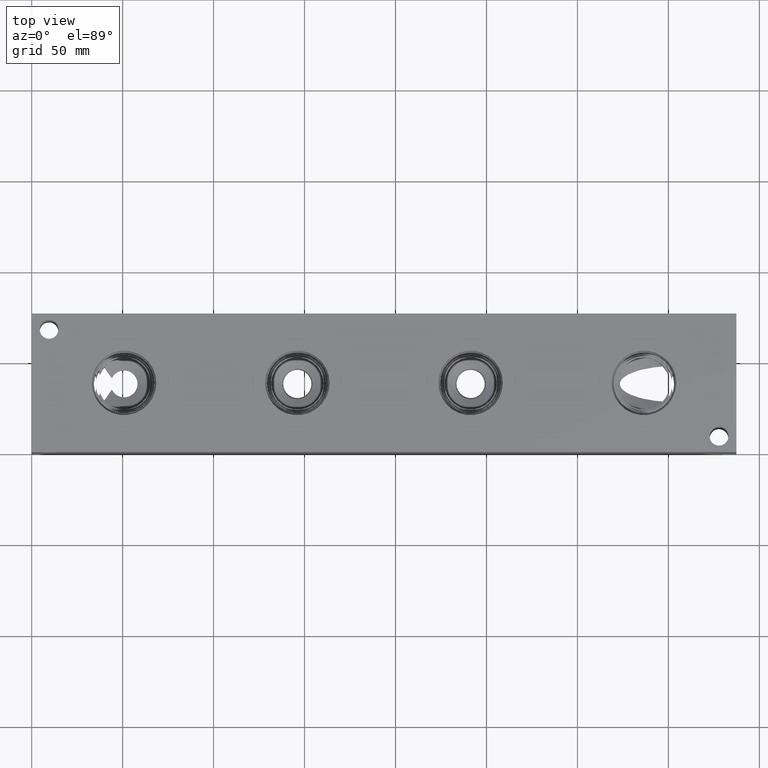
[diagram: clean part render]
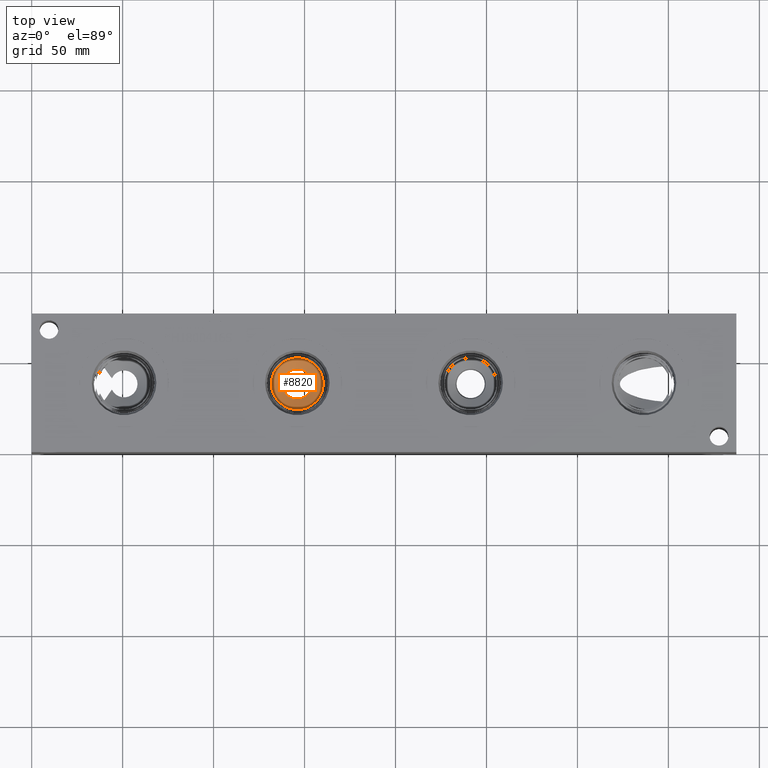
[diagram: same view with one face highlighted and labeled with its STEP entity id]
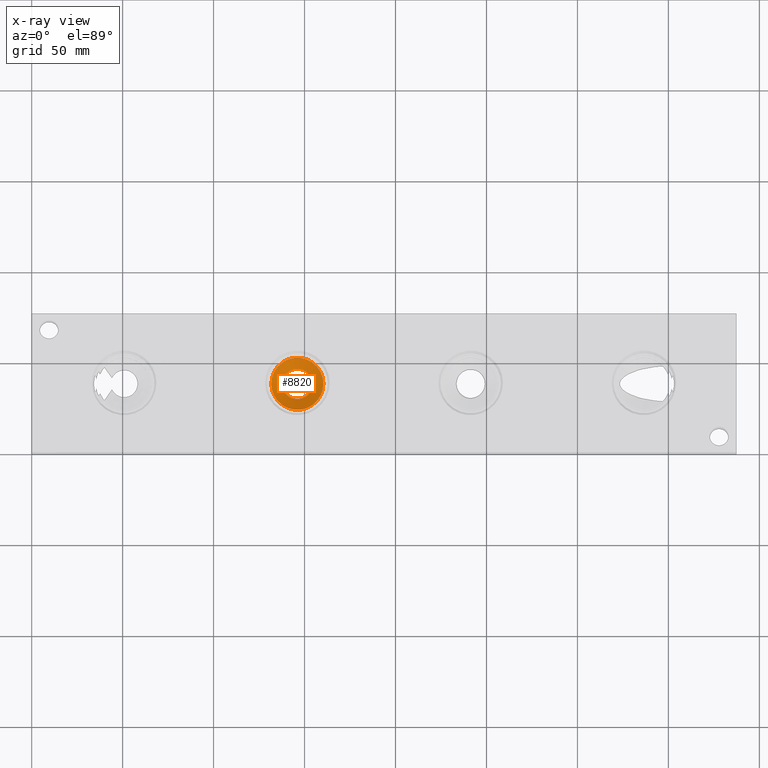
[diagram: x-ray of the same camera — body ghosted, the highlighted face saturated]
A machine part, top view. The second image highlights one B-rep face of the part: STEP entity #8820.
The next image is the same camera in x-ray: the body ghosted, the highlighted face saturated — about 0% of this face is hidden behind the body in this view.
In plain terms, the highlighted conical surface has half-angle 60 deg.
Its self-contained STEP definition (entity closure, byte-faithful):
#126=CONICAL_SURFACE('',#9330,7.14375,1.0471975511966);
#269=CIRCLE('',#9331,14.2875);
#270=CIRCLE('',#9332,8.29239320143379);
#271=CIRCLE('',#9333,14.2875);
#1128=FACE_OUTER_BOUND('',#1628,.T.);
#1628=EDGE_LOOP('',(#7486,#7487,#7488,#7489,#7490));
#2457=LINE('',#15194,#3248);
#3248=VECTOR('',#11079,7.14375);
#4043=VERTEX_POINT('',#15190);
#4044=VERTEX_POINT('',#15191);
#4045=VERTEX_POINT('',#15193);
#5225=EDGE_CURVE('',#4043,#4044,#269,.T.);
#5226=EDGE_CURVE('',#4044,#4045,#2457,.T.);
#5227=EDGE_CURVE('',#4045,#4045,#270,.T.);
#5228=EDGE_CURVE('',#4044,#4043,#271,.T.);
#7486=ORIENTED_EDGE('',*,*,#5225,.T.);
#7487=ORIENTED_EDGE('',*,*,#5226,.T.);
#7488=ORIENTED_EDGE('',*,*,#5227,.F.);
#7489=ORIENTED_EDGE('',*,*,#5226,.F.);
#7490=ORIENTED_EDGE('',*,*,#5228,.T.);
#8820=ADVANCED_FACE('',(#1128),#126,.F.);
#9330=AXIS2_PLACEMENT_3D('',#15189,#11075,#11076);
#9331=AXIS2_PLACEMENT_3D('',#15192,#11077,#11078);
#9332=AXIS2_PLACEMENT_3D('',#15195,#11080,#11081);
#9333=AXIS2_PLACEMENT_3D('',#15196,#11082,#11083);
#11075=DIRECTION('center_axis',(0.,0.,1.));
#11076=DIRECTION('ref_axis',(1.,0.,0.));
#11077=DIRECTION('center_axis',(0.,0.,1.));
#11078=DIRECTION('ref_axis',(1.,0.,0.));
#11079=DIRECTION('',(0.866025403784438,1.06057523872491E-16,-0.5));
#11080=DIRECTION('center_axis',(0.,0.,1.));
#11081=DIRECTION('ref_axis',(1.,0.,0.));
#11082=DIRECTION('center_axis',(0.,0.,1.));
#11083=DIRECTION('ref_axis',(1.,0.,0.));
#15189=CARTESIAN_POINT('Origin',(146.05,38.1,39.4284640144766));
#15190=CARTESIAN_POINT('',(160.3375,38.1,43.55291));
#15191=CARTESIAN_POINT('',(131.7625,38.1,43.55291));
#15192=CARTESIAN_POINT('Origin',(146.05,38.1,43.55291));
#15193=CARTESIAN_POINT('',(137.757606798566,38.1,40.0916334760273));
#15194=CARTESIAN_POINT('',(138.90625,38.1,39.4284640144766));
#15195=CARTESIAN_POINT('Origin',(146.05,38.1,40.0916334760273));
#15196=CARTESIAN_POINT('Origin',(146.05,38.1,43.55291));